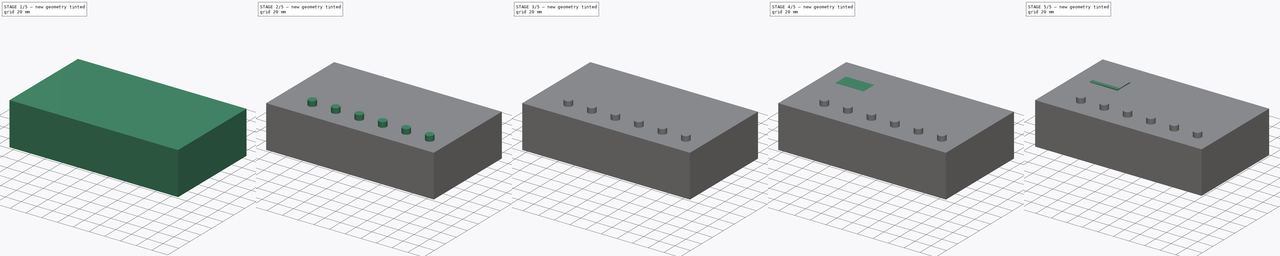
[diagram: build sequence overview — one tinted view per stage of 5, left to right]
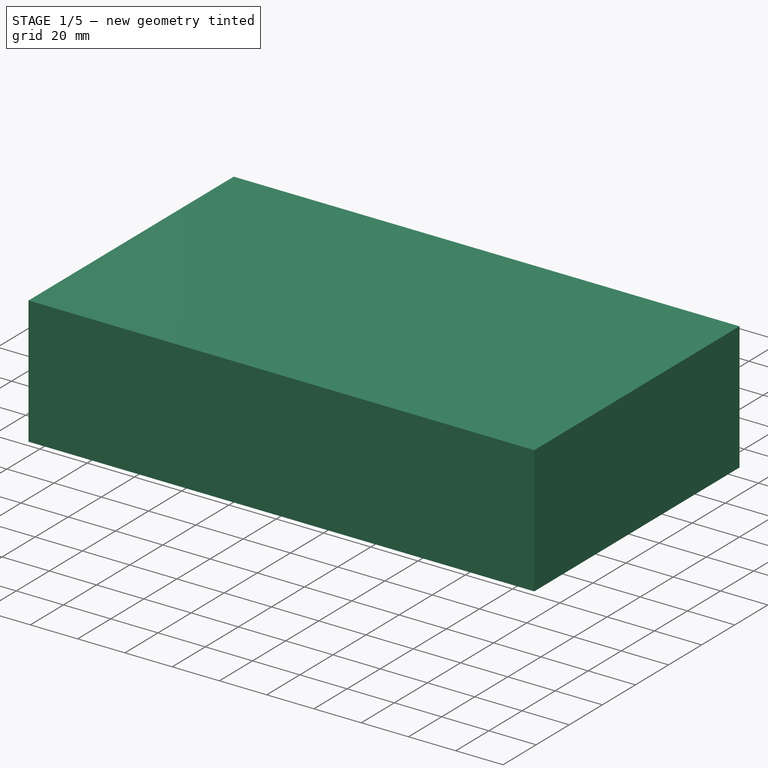
[diagram: stage 1 of 5 — iso view after this stage's code; geometry added in this stage tinted green]
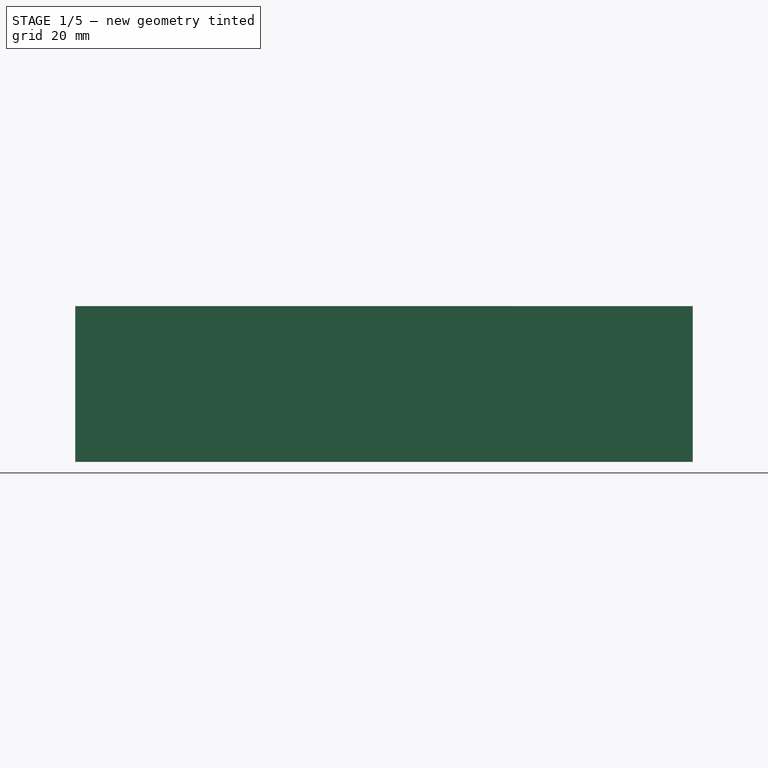
[diagram: stage 1 of 5 — front view after this stage's code; geometry added in this stage tinted green]
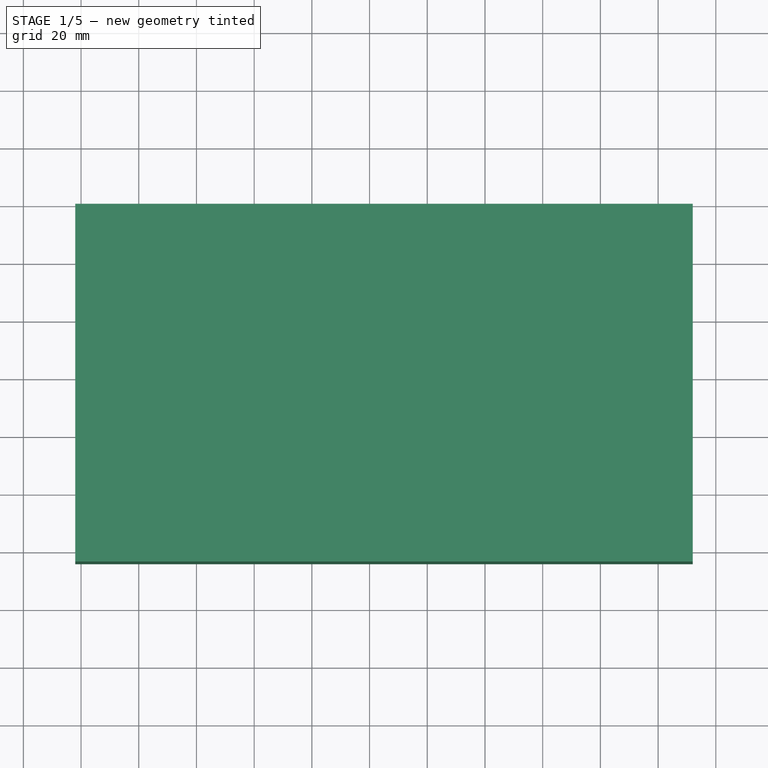
[diagram: stage 1 of 5 — top view after this stage's code; geometry added in this stage tinted green]
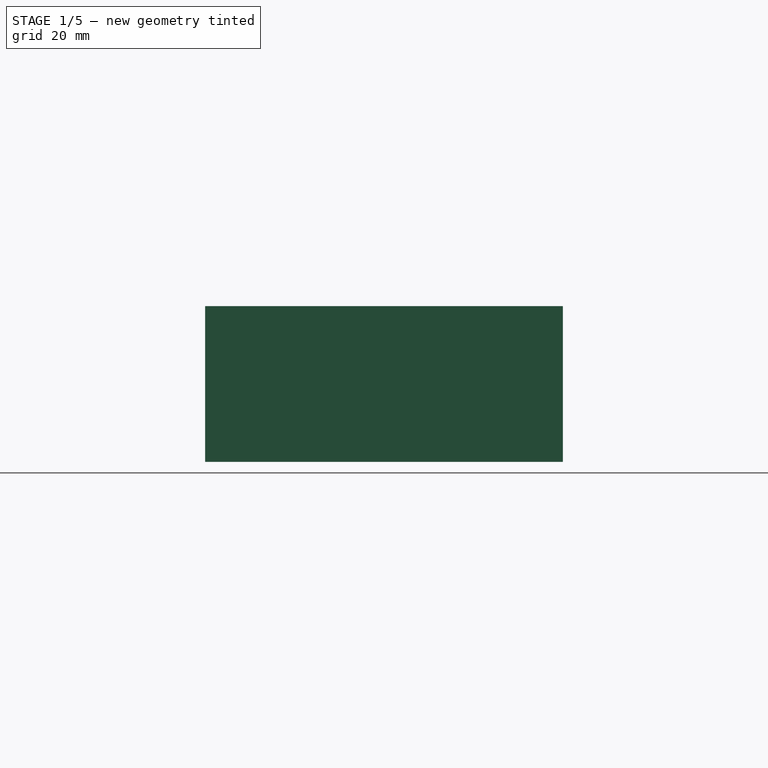
[diagram: stage 1 of 5 — right view after this stage's code; geometry added in this stage tinted green]
FCSTD DOCUMENT  (FreeCAD 0.17R13522 (Git))
Label: 温度控制器
License: All rights reserved
LicenseURL: http://en.wikipedia.org/wiki/All_rights_reserved
objects: Drawing::FeatureViewPart×13, Drawing::FeatureViewPython×13, Part::Feature×12, Part::Box×10, Part::MultiFuse×10, Part::Cylinder×9, Sketcher::SketchObject×4, PartDesign::Pad×4, Part::Cut×3, App::MeasureDistance×2, Part::FeaturePython×1, App::DocumentObjectGroup×1, Drawing::FeaturePage×1
note: 57 computed .brp shape members not serialized (recipe doc carries the construction recipe); baked Part::Feature solids carry a one-line shape summary decoded from their .brp

FEATURE [Part::Box] Box004  label="外壳"
  AttacherType = Attacher::AttachEngine3D
  Height = 50
  Length = 210
  Placement = pos=(-20,-62,0) rot=(0,0,1;0rad)
  Width = 120
FEATURE [App::DocumentObjectGroup] ___  label="group"
  Group = -> [Part__Feature,Part__Feature001,User_Library_QC12864B,Array]
FEATURE [Part::Box] Box008  label="外壳001"
  AttacherType = Attacher::AttachEngine3D
  Height = 54
  Length = 214
  Placement = pos=(-22,-64,-2) rot=(0,0,1;0rad)
  Width = 124
FEATURE [Drawing::FeatureViewPart] View
  Direction = (0,0,1)
  HiddenWidth = 0.15
  LineWidth = 0.35
  Rotation = 0
  ShowHiddenLines = false
  ShowSmoothLines = false
  Source = -> Part__Feature
  Tolerance = 0.05
  ViewResult = <blob: 7566 chars omitted>
  Visible = false
  X = 70
  Y = 80
FEATURE [Drawing::FeatureViewPart] View001
  Direction = (0,0,1)
  HiddenWidth = 0.15
  LineWidth = 0.35
  Rotation = 0
  ShowHiddenLines = false
  ShowSmoothLines = false
  Source = -> Fusion019002001
  Tolerance = 0.05
  ViewResult = <blob: 5782 chars omitted>
  Visible = false
  X = 70
  Y = 80
FEATURE [Drawing::FeatureViewPart] View002
  Direction = (0,0,1)
  HiddenWidth = 0.15
  LineWidth = 0.35
  Rotation = 0
  ShowHiddenLines = false
  ShowSmoothLines = false
  Source = -> Array
  Tolerance = 0.05
  ViewResult = <g id="View002"\n   transform="rotate(0,70,80) translate(70,80) scale(1,1)"\n  >\n<g   fill="none"\n   stroke="rgb(0, 0, 0)"\n   stroke-linecap="butt"\n   stroke-linejoin="miter"\n   stroke-width="0.350000"\n   transform="scale(1,-1)"\n  >\n<circle cx ="20" cy ="-40" r ="7" /><circle cx ="20" cy ="-40" r ="5" /><circle cx ="50" cy ="-40" r ="7" /><circle cx ="50" cy ="-40" r ="5" /><circle cx ="80" cy ="-40" r ="7" /><circle cx ="80" cy ="-40" r ="5" /><circle cx ="110" cy ="-40" r ="7" /><circle cx ="110" cy ="-40" r ="5" /><circle cx ="140" cy ="-40" r ="7" /><circle cx ="140" cy ="-40" r ="5" /><circle cx ="170" cy ="-40" r ="7" /><circle cx ="170" cy ="-40" r ="5" /></g>\n</g>
  Visible = false
  X = 70
  Y = 80
FEATURE [Drawing::FeatureViewPart] View003
  Direction = (0,0,1)
  HiddenWidth = 0.15
  LineWidth = 0.35
  Rotation = 0
  ShowHiddenLines = false
  ShowSmoothLines = false
  Source = -> Fusion019002002
  Tolerance = 0.05
  ViewResult = <g id="View003"\n   transform="rotate(0,70,80) translate(70,80) scale(1,1)"\n  >\n<g   fill="none"\n   stroke="rgb(0, 0, 0)"\n   stroke-linecap="butt"\n   stroke-linejoin="miter"\n   stroke-width="0.350000"\n   transform="scale(1,-1)"\n  >\n<path id= "1" d=" M 107.7 -21 L 152.3 -21 " />\n<path id= "2" d=" M 107.7 -39 L 107.7 -21 " />\n<path id= "3" d=" M 152.3 -21 L 152.3 -26.25 " />\n<path id= "4" d=" M 152.3 -33.75 L 152.3 -39 " />\n<path id= "5" d=" M 152.3 -39 L 107.7 -39 " />\n<path id= "6" d=" M 152 -26.25 L 145 -26.25 " />\n<path id= "7" d=" M 154 -26.25 L 152 -26.25 " />\n<path id= "8" d=" M 145 -26.25 L 145 -33.75 " />\n<path id= "9" d=" M 154 -33.75 L 152 -33.75 " />\n<path id= "10" d=" M 152 -33.75 L 145 -33.75 " />\n<path id= "11" d=" M 124.7 -32.5 L 124.7 -28.5 " />\n<path id= "12" d=" M 127.7 -32.5 L 124.7 -32.5 " />\n<path id= "13" d=" M 127.7 -28.5 L 127.7 -32.5 " />\n<path id= "14" d=" M 124.7 -28.5 L 127.7 -28.5 " />\n<path id= "15" d=" M 135.65 -25.0503 L 130.7 -30 " />\n<path id= "16" d=" M 130.7 -30 L 135.65 -34.9497 " />\n<path id= "17" d=" M 135.65 -34.9497 L 140.599 -30 " />\n<path id= "18" d=" M 140.599 -30 L 135.65 -25.0503 " />\n<path id= "19" d=" M 154 -26.25 L 154 -33.75 " />\n<circle cx ="126.2" cy ="-30.5" r ="1" /></g>\n</g>
  Visible = false
  X = 70
  Y = 80
FEATURE [Drawing::FeatureViewPart] View004
  Direction = (0,0,1)
  HiddenWidth = 0.15
  LineWidth = 0.35
  Rotation = 0
  ShowHiddenLines = false
  ShowSmoothLines = false
  Source = -> Box007
  Tolerance = 0.05
  ViewResult = <g id="View004"\n   transform="rotate(0,70,80) translate(70,80) scale(1,1)"\n  >\n<g   fill="none"\n   stroke="rgb(0, 0, 0)"\n   stroke-linecap="butt"\n   stroke-linejoin="miter"\n   stroke-width="0.350000"\n   transform="scale(1,-1)"\n  >\n<path id= "1" d=" M 110 7 L 110 58 " />\n<path id= "2" d=" M 190 7 L 190 58 " />\n<path id= "3" d=" M 110 7 L 190 7 " />\n<path id= "4" d=" M 110 58 L 190 58 " />\n</g>\n</g>
  Visible = false
  X = 70
  Y = 80
FEATURE [Drawing::FeatureViewPart] View005
  Direction = (0,0,1)
  HiddenWidth = 0.15
  LineWidth = 0.35
  Rotation = 0
  ShowHiddenLines = false
  ShowSmoothLines = false
  Source = -> Cut001
  Tolerance = 0.05
  ViewResult = <g id="View005"\n   transform="rotate(0,70,80) translate(70,80) scale(1,1)"\n  >\n<g   fill="none"\n   stroke="rgb(0, 0, 0)"\n   stroke-linecap="butt"\n   stroke-linejoin="miter"\n   stroke-width="0.350000"\n   transform="scale(1,-1)"\n  >\n<path id= "1" d=" M -22 -64 L -22 60 " />\n<path id= "2" d=" M -22 -64 L 192 -64 " />\n<path id= "3" d=" M -22 60 L 192 60 " />\n<path id= "4" d=" M 192 -64 L 192 60 " />\n</g>\n</g>
  Visible = false
  X = 70
  Y = 80
FEATURE [Drawing::FeatureViewPart] View006
  Direction = (0,0,1)
  HiddenWidth = 0.15
  LineWidth = 0.35
  Rotation = 0
  ShowHiddenLines = false
  ShowSmoothLines = false
  Source = -> Fusion019001
  Tolerance = 0.05
  ViewResult = <g id="View006"\n   transform="rotate(0,70,80) translate(70,80) scale(1,1)"\n  >\n<g   fill="none"\n   stroke="rgb(0, 0, 0)"\n   stroke-linecap="butt"\n   stroke-linejoin="miter"\n   stroke-width="0.350000"\n   transform="scale(1,-1)"\n  >\n<path id= "1" d=" M 57.7 -21 L 102.3 -21 " />\n<path id= "2" d=" M 57.7 -39 L 57.7 -21 " />\n<path id= "3" d=" M 102.3 -21 L 102.3 -26.25 " />\n<path id= "4" d=" M 102.3 -33.75 L 102.3 -39 " />\n<path id= "5" d=" M 102.3 -39 L 57.7 -39 " />\n<path id= "6" d=" M 102 -26.25 L 95 -26.25 " />\n<path id= "7" d=" M 104 -26.25 L 102 -26.25 " />\n<path id= "8" d=" M 95 -26.25 L 95 -33.75 " />\n<path id= "9" d=" M 104 -33.75 L 102 -33.75 " />\n<path id= "10" d=" M 102 -33.75 L 95 -33.75 " />\n<path id= "11" d=" M 74.7 -32.5 L 74.7 -28.5 " />\n<path id= "12" d=" M 77.7 -32.5 L 74.7 -32.5 " />\n<path id= "13" d=" M 77.7 -28.5 L 77.7 -32.5 " />\n<path id= "14" d=" M 74.7 -28.5 L 77.7 -28.5 " />\n<path id= "15" d=" M 85.6497 -25.0503 L 80.7 -30 " />\n<path id= "16" d=" M 80.7 -30 L 85.6497 -34.9497 " />\n<path id= "17" d=" M 85.6497 -34.9497 L 90.5995 -30 " />\n<path id= "18" d=" M 90.5995 -30 L 85.6497 -25.0503 " />\n<path id= "19" d=" M 104 -26.25 L 104 -33.75 " />\n<circle cx ="76.2" cy ="-30.5" r ="1" /></g>\n</g>
  Visible = false
  X = 70
  Y = 80
FEATURE [Drawing::FeatureViewPart] View007
  Direction = (0,0,1)
  HiddenWidth = 0.15
  LineWidth = 0.35
  Rotation = 0
  ShowHiddenLines = false
  ShowSmoothLines = false
  Source = -> Box005
  Tolerance = 0.05
  ViewResult = <g id="View007"\n   transform="rotate(0,70,80) translate(70,80) scale(1,1)"\n  >\n<g   fill="none"\n   stroke="rgb(0, 0, 0)"\n   stroke-linecap="butt"\n   stroke-linejoin="miter"\n   stroke-width="0.350000"\n   transform="scale(1,-1)"\n  >\n<path id= "1" d=" M 20 0 L 20 26 " />\n<path id= "2" d=" M 70 0 L 70 26 " />\n<path id= "3" d=" M 20 0 L 70 0 " />\n<path id= "4" d=" M 20 26 L 70 26 " />\n</g>\n</g>
  Visible = false
  X = 70
  Y = 80
FEATURE [Drawing::FeatureViewPart] View008
  Direction = (0,0,1)
  HiddenWidth = 0.15
  LineWidth = 0.35
  Rotation = 0
  ShowHiddenLines = false
  ShowSmoothLines = false
  Source = -> Part__Feature001
  Tolerance = 0.05
  ViewResult = <blob: 7342 chars omitted>
  Visible = false
  X = 70
  Y = 80
FEATURE [Drawing::FeatureViewPart] View009
  Direction = (0,0,1)
  HiddenWidth = 0.15
  LineWidth = 0.35
  Rotation = 0
  ShowHiddenLines = false
  ShowSmoothLines = false
  Source = -> Box006
  Tolerance = 0.05
  ViewResult = <g id="View009"\n   transform="rotate(0,70,80) translate(70,80) scale(1,1)"\n  >\n<g   fill="none"\n   stroke="rgb(0, 0, 0)"\n   stroke-linecap="butt"\n   stroke-linejoin="miter"\n   stroke-width="0.350000"\n   transform="scale(1,-1)"\n  >\n<path id= "1" d=" M 20 29 L 20 55 " />\n<path id= "2" d=" M 70 29 L 70 55 " />\n<path id= "3" d=" M 20 29 L 70 29 " />\n<path id= "4" d=" M 20 55 L 70 55 " />\n</g>\n</g>
  Visible = false
  X = 70
  Y = 80
FEATURE [Drawing::FeatureViewPart] View010
  Direction = (0,0,1)
  HiddenWidth = 0.15
  LineWidth = 0.35
  Rotation = 0
  ShowHiddenLines = false
  ShowSmoothLines = false
  Source = -> User_Library_QC12864B
  Tolerance = 0.05
  ViewResult = <blob: 168378 chars omitted>
  Visible = false
  X = 70
  Y = 80
FEATURE [Drawing::FeatureViewPython] dim001  # drawing view (typed FeaturePython)
  Rotation = 0
  ViewResult = <g> \n  <line x1="46.000000" y1="144.000000" x2="20.939112" y2="144.000000" style="stroke:rgb(0,0,255);stroke-width:0.50" />\n<line x1="46.000000" y1="20.000000" x2="20.939112" y2="20.000000" style="stroke:rgb(0,0,255);stroke-width:0.50" />\n<line x1="21.939112" y1="144.000000" x2="21.939112" y2="20.000000" style="stroke:rgb(0,0,255);stroke-width:0.50" /> \n  <polygon points="21.939112,20.000000 20.939112,23.000000 21.939112,24.000000 22.939112,23.000000" style="fill:rgb(0,0,255);stroke:rgb(0,0,255);stroke-width:0" /><polygon points="21.939112,144.000000 22.939112,141.000000 21.939112,140.000000 20.939112,141.000000" style="fill:rgb(0,0,255);stroke:rgb(0,0,255);stroke-width:0" /> \n  <text x="19.939112" y="82.000000" font-family="inherit" font-size="3.6" fill="rgb(0,0,255)" text-anchor="middle" transform="rotate(-90.000000 19.939112,82.000000)" >124</text> </g>
  Visible = false
  X = 0
  Y = 0
  arrowL1 = 3
  arrowL2 = 1
  arrowW = 2
  arrow_scheme = 0
  autoPlaceOffset = 2
  autoPlaceText = true
  click1_x = 21.9391
  click1_y = 97.0196
  click2_x = 21.9391
  click2_y = 97.0196
  comma_decimal_place = false
  dimension_line_overshoot = 1
  gap_datum_points = 2
  halfDimension_linear = false
  lineColor = rgb(0,0,255)
  strokeWidth = 0.5
  textFormat_linear = %(value)3.3f
  textRenderer_color = rgb(0,0,255)
  textRenderer_family = inherit
  textRenderer_size = 3.6
  unit_custom_scale = 1
  unit_scheme = 0
FEATURE [Drawing::FeatureViewPython] dim002  # drawing view (typed FeaturePython)
  Rotation = 0
  ViewResult = <g> \n  <line x1="48.000000" y1="146.000000" x2="48.000000" y2="156.992574" style="stroke:rgb(0,0,255);stroke-width:0.50" />\n<line x1="262.000000" y1="146.000000" x2="262.000000" y2="156.992574" style="stroke:rgb(0,0,255);stroke-width:0.50" />\n<line x1="48.000000" y1="155.992574" x2="262.000000" y2="155.992574" style="stroke:rgb(0,0,255);stroke-width:0.50" /> \n  <polygon points="262.000000,155.992574 259.000000,154.992574 258.000000,155.992574 259.000000,156.992574" style="fill:rgb(0,0,255);stroke:rgb(0,0,255);stroke-width:0" /><polygon points="48.000000,155.992574 51.000000,156.992574 52.000000,155.992574 51.000000,154.992574" style="fill:rgb(0,0,255);stroke:rgb(0,0,255);stroke-width:0" /> \n  <text x="155.000000" y="153.992574" font-family="inherit" font-size="3.6" fill="rgb(0,0,255)" text-anchor="middle" transform="rotate(0.000000 155.000000,153.992574)" >214</text> </g>
  Visible = false
  X = 0
  Y = 0
  arrowL1 = 3
  arrowL2 = 1
  arrowW = 2
  arrow_scheme = 0
  autoPlaceOffset = 2
  autoPlaceText = true
  click1_x = 59.4151
  click1_y = 155.993
  click2_x = 59.4151
  click2_y = 155.993
  comma_decimal_place = false
  dimension_line_overshoot = 1
  gap_datum_points = 2
  halfDimension_linear = false
  lineColor = rgb(0,0,255)
  strokeWidth = 0.5
  textFormat_linear = %(value)3.3f
  textRenderer_color = rgb(0,0,255)
  textRenderer_family = inherit
  textRenderer_size = 3.6
  unit_custom_scale = 1
  unit_scheme = 0
FEATURE [Drawing::FeatureViewPython] dim003  # drawing view (typed FeaturePython)
  Rotation = 0
  ViewResult = <g> \n  <line x1="52.000000" y1="131.700000" x2="73.321807" y2="131.700000" style="stroke:rgb(0,0,255);stroke-width:0.50" />\n<line x1="52.000000" y1="106.300000" x2="73.321807" y2="106.300000" style="stroke:rgb(0,0,255);stroke-width:0.50" />\n<line x1="72.321807" y1="131.700000" x2="72.321807" y2="106.300000" style="stroke:rgb(0,0,255);stroke-width:0.50" /> \n  <polygon points="72.321807,106.300000 71.321807,109.300000 72.321807,110.300000 73.321807,109.300000" style="fill:rgb(0,0,255);stroke:rgb(0,0,255);stroke-width:0" /><polygon points="72.321807,131.700000 73.321807,128.700000 72.321807,127.700000 71.321807,128.700000" style="fill:rgb(0,0,255);stroke:rgb(0,0,255);stroke-width:0" /> \n  <text x="70.321807" y="119.000000" font-family="inherit" font-size="3.6" fill="rgb(0,0,255)" text-anchor="middle" transform="rotate(-90.000000 70.321807,119.000000)" >25.4</text> </g>
  Visible = false
  X = 0
  Y = 0
  arrowL1 = 3
  arrowL2 = 1
  arrowW = 2
  arrow_scheme = 0
  autoPlaceOffset = 2
  autoPlaceText = true
  click1_x = 72.3218
  click1_y = 120.833
  click2_x = 72.3218
  click2_y = 120.833
  comma_decimal_place = false
  dimension_line_overshoot = 1
  gap_datum_points = 2
  halfDimension_linear = false
  lineColor = rgb(0,0,255)
  strokeWidth = 0.5
  textFormat_linear = %(value)3.3f
  textRenderer_color = rgb(0,0,255)
  textRenderer_family = inherit
  textRenderer_size = 3.6
  unit_custom_scale = 1
  unit_scheme = 0
FEATURE [Drawing::FeatureViewPython] dim004  # drawing view (typed FeaturePython)
  Rotation = 0
  ViewResult = <g> \n  <line x1="83.020500" y1="30.000000" x2="80.668009" y2="30.000000" style="stroke:rgb(0,0,255);stroke-width:0.50" />\n<line x1="83.020500" y1="100.000000" x2="80.668009" y2="100.000000" style="stroke:rgb(0,0,255);stroke-width:0.50" />\n<line x1="81.668009" y1="30.000000" x2="81.668009" y2="100.000000" style="stroke:rgb(0,0,255);stroke-width:0.50" /> \n  <polygon points="81.668009,100.000000 82.668009,97.000000 81.668009,96.000000 80.668009,97.000000" style="fill:rgb(0,0,255);stroke:rgb(0,0,255);stroke-width:0" /><polygon points="81.668009,30.000000 80.668009,33.000000 81.668009,34.000000 82.668009,33.000000" style="fill:rgb(0,0,255);stroke:rgb(0,0,255);stroke-width:0" /> \n  <text x="79.668009" y="65.000000" font-family="inherit" font-size="3.6" fill="rgb(0,0,255)" text-anchor="middle" transform="rotate(-90.000000 79.668009,65.000000)" >70</text> </g>
  Visible = false
  X = 0
  Y = 0
  arrowL1 = 3
  arrowL2 = 1
  arrowW = 2
  arrow_scheme = 0
  autoPlaceOffset = 2
  autoPlaceText = true
  click1_x = 81.668
  click1_y = 63.8657
  click2_x = 81.668
  click2_y = 63.8657
  comma_decimal_place = false
  dimension_line_overshoot = 1
  gap_datum_points = 2
  halfDimension_linear = false
  lineColor = rgb(0,0,255)
  strokeWidth = 0.5
  textFormat_linear = %(value)3.3f
  textRenderer_color = rgb(0,0,255)
  textRenderer_family = inherit
  textRenderer_size = 3.6
  unit_custom_scale = 1
  unit_scheme = 0
FEATURE [Drawing::FeatureViewPython] dim005  # drawing view (typed FeaturePython)
  Rotation = 0
  ViewResult = <g> \n  <line x1="178.021000" y1="28.000000" x2="178.021000" y2="13.241833" style="stroke:rgb(0,0,255);stroke-width:0.50" />\n<line x1="85.020500" y1="28.000000" x2="85.020500" y2="13.241833" style="stroke:rgb(0,0,255);stroke-width:0.50" />\n<line x1="178.021000" y1="14.241833" x2="85.020500" y2="14.241833" style="stroke:rgb(0,0,255);stroke-width:0.50" /> \n  <polygon points="85.020500,14.241833 88.020500,15.241833 89.020500,14.241833 88.020500,13.241833" style="fill:rgb(0,0,255);stroke:rgb(0,0,255);stroke-width:0" /><polygon points="178.021000,14.241833 175.021000,13.241833 174.021000,14.241833 175.021000,15.241833" style="fill:rgb(0,0,255);stroke:rgb(0,0,255);stroke-width:0" /> \n  <text x="131.520750" y="12.241833" font-family="inherit" font-size="3.6" fill="rgb(0,0,255)" text-anchor="middle" transform="rotate(0.000000 131.520750,12.241833)" >93.001</text> </g>
  Visible = false
  X = 0
  Y = 0
  arrowL1 = 3
  arrowL2 = 1
  arrowW = 2
  arrow_scheme = 0
  autoPlaceOffset = 2
  autoPlaceText = true
  click1_x = 105.924
  click1_y = 14.2418
  click2_x = 105.924
  click2_y = 14.2418
  comma_decimal_place = false
  dimension_line_overshoot = 1
  gap_datum_points = 2
  halfDimension_linear = false
  lineColor = rgb(0,0,255)
  strokeWidth = 0.5
  textFormat_linear = %(value)3.3f
  textRenderer_color = rgb(0,0,255)
  textRenderer_family = inherit
  textRenderer_size = 3.6
  unit_custom_scale = 1
  unit_scheme = 0
FEATURE [Drawing::FeatureViewPython] dim006  # drawing view (typed FeaturePython)
  Rotation = 0
  ViewResult = <g> \n  <line x1="262.000000" y1="73.000000" x2="272.707464" y2="73.000000" style="stroke:rgb(0,0,255);stroke-width:0.50" />\n<line x1="262.000000" y1="22.000000" x2="272.707464" y2="22.000000" style="stroke:rgb(0,0,255);stroke-width:0.50" />\n<line x1="271.707464" y1="73.000000" x2="271.707464" y2="22.000000" style="stroke:rgb(0,0,255);stroke-width:0.50" /> \n  <polygon points="271.707464,22.000000 270.707464,25.000000 271.707464,26.000000 272.707464,25.000000" style="fill:rgb(0,0,255);stroke:rgb(0,0,255);stroke-width:0" /><polygon points="271.707464,73.000000 272.707464,70.000000 271.707464,69.000000 270.707464,70.000000" style="fill:rgb(0,0,255);stroke:rgb(0,0,255);stroke-width:0" /> \n  <text x="269.707464" y="47.500000" font-family="inherit" font-size="3.6" fill="rgb(0,0,255)" text-anchor="middle" transform="rotate(-90.000000 269.707464,47.500000)" >51</text> </g>
  Visible = false
  X = 0
  Y = 0
  arrowL1 = 3
  arrowL2 = 1
  arrowW = 2
  arrow_scheme = 0
  autoPlaceOffset = 2
  autoPlaceText = true
  click1_x = 271.707
  click1_y = 50.514
  click2_x = 271.707
  click2_y = 50.514
  comma_decimal_place = false
  dimension_line_overshoot = 1
  gap_datum_points = 2
  halfDimension_linear = false
  lineColor = rgb(0,0,255)
  strokeWidth = 0.5
  textFormat_linear = %(value)3.3f
  textRenderer_color = rgb(0,0,255)
  textRenderer_family = inherit
  textRenderer_size = 3.6
  unit_custom_scale = 1
  unit_scheme = 0
FEATURE [Drawing::FeatureViewPython] dim007  # drawing view (typed FeaturePython)
  Rotation = 0
  ViewResult = <g> \n  <line x1="180.000000" y1="20.000000" x2="180.000000" y2="13.241833" style="stroke:rgb(0,0,255);stroke-width:0.50" />\n<line x1="260.000000" y1="20.000000" x2="260.000000" y2="13.241833" style="stroke:rgb(0,0,255);stroke-width:0.50" />\n<line x1="180.000000" y1="14.241833" x2="260.000000" y2="14.241833" style="stroke:rgb(0,0,255);stroke-width:0.50" /> \n  <polygon points="260.000000,14.241833 257.000000,13.241833 256.000000,14.241833 257.000000,15.241833" style="fill:rgb(0,0,255);stroke:rgb(0,0,255);stroke-width:0" /><polygon points="180.000000,14.241833 183.000000,15.241833 184.000000,14.241833 183.000000,13.241833" style="fill:rgb(0,0,255);stroke:rgb(0,0,255);stroke-width:0" /> \n  <text x="220.000000" y="12.241833" font-family="inherit" font-size="3.6" fill="rgb(0,0,255)" text-anchor="middle" transform="rotate(0.000000 220.000000,12.241833)" >80</text> </g>
  Visible = false
  X = 0
  Y = 0
  arrowL1 = 3
  arrowL2 = 1
  arrowW = 2
  arrow_scheme = 0
  autoPlaceOffset = 2
  autoPlaceText = true
  click1_x = 225.867
  click1_y = 14.2418
  click2_x = 225.867
  click2_y = 14.2418
  comma_decimal_place = false
  dimension_line_overshoot = 1
  gap_datum_points = 2
  halfDimension_linear = false
  lineColor = rgb(0,0,255)
  strokeWidth = 0.5
  textFormat_linear = %(value)3.3f
  textRenderer_color = rgb(0,0,255)
  textRenderer_family = inherit
  textRenderer_size = 3.6
  unit_custom_scale = 1
  unit_scheme = 0
FEATURE [Drawing::FeatureViewPython] dim008  # drawing view (typed FeaturePython)
  Rotation = 0
  ViewResult = <g> \n  <line x1="90.000000" y1="127.000000" x2="90.000000" y2="131.492207" style="stroke:rgb(0,0,255);stroke-width:0.50" />\n<line x1="85.000000" y1="122.000000" x2="85.000000" y2="131.492207" style="stroke:rgb(0,0,255);stroke-width:0.50" />\n<line x1="90.000000" y1="130.492207" x2="85.000000" y2="130.492207" style="stroke:rgb(0,0,255);stroke-width:0.50" /> \n  <polygon points="85.000000,130.492207 82.000000,129.492207 81.000000,130.492207 82.000000,131.492207" style="fill:rgb(0,0,255);stroke:rgb(0,0,255);stroke-width:0" /><polygon points="90.000000,130.492207 93.000000,131.492207 94.000000,130.492207 93.000000,129.492207" style="fill:rgb(0,0,255);stroke:rgb(0,0,255);stroke-width:0" /> \n  <text x="87.500000" y="128.492207" font-family="inherit" font-size="3.6" fill="rgb(0,0,255)" text-anchor="middle" transform="rotate(0.000000 87.500000,128.492207)" >5</text> </g>
  Visible = false
  X = 0
  Y = 0
  arrowL1 = 3
  arrowL2 = 1
  arrowW = 2
  arrow_scheme = 0
  autoPlaceOffset = 2
  autoPlaceText = true
  click1_x = 87.4171
  click1_y = 130.492
  click2_x = 87.4171
  click2_y = 130.492
  comma_decimal_place = false
  dimension_line_overshoot = 1
  gap_datum_points = 2
  halfDimension_linear = false
  lineColor = rgb(0,0,255)
  strokeWidth = 0.5
  textFormat_linear = %(value)3.3f
  textRenderer_color = rgb(0,0,255)
  textRenderer_family = inherit
  textRenderer_size = 3.6
  unit_custom_scale = 1
  unit_scheme = 0
FEATURE [Drawing::FeatureViewPython] dim009  # drawing view (typed FeaturePython)
  Rotation = 0
  ViewResult = <g> \n  <line x1="85.000000" y1="118.000000" x2="85.000000" y2="109.519670" style="stroke:rgb(0,0,255);stroke-width:0.50" />\n<line x1="95.000000" y1="118.000000" x2="95.000000" y2="109.519670" style="stroke:rgb(0,0,255);stroke-width:0.50" />\n<line x1="85.000000" y1="110.519670" x2="95.000000" y2="110.519670" style="stroke:rgb(0,0,255);stroke-width:0.50" /> \n  <polygon points="95.000000,110.519670 98.000000,111.519670 99.000000,110.519670 98.000000,109.519670" style="fill:rgb(0,0,255);stroke:rgb(0,0,255);stroke-width:0" /><polygon points="85.000000,110.519670 82.000000,109.519670 81.000000,110.519670 82.000000,111.519670" style="fill:rgb(0,0,255);stroke:rgb(0,0,255);stroke-width:0" /> \n  <text x="90.000000" y="108.519670" font-family="inherit" font-size="3.6" fill="rgb(0,0,255)" text-anchor="middle" transform="rotate(0.000000 90.000000,108.519670)" >10</text> </g>
  Visible = false
  X = 0
  Y = 0
  arrowL1 = 3
  arrowL2 = 1
  arrowW = 2
  arrow_scheme = 0
  autoPlaceOffset = 2
  autoPlaceText = true
  click1_x = 92.4102
  click1_y = 110.52
  click2_x = 92.4102
  click2_y = 110.52
  comma_decimal_place = false
  dimension_line_overshoot = 1
  gap_datum_points = 2
  halfDimension_linear = false
  lineColor = rgb(0,0,255)
  strokeWidth = 0.5
  textFormat_linear = %(value)3.3f
  textRenderer_color = rgb(0,0,255)
  textRenderer_family = inherit
  textRenderer_size = 3.6
  unit_custom_scale = 1
  unit_scheme = 0
FEATURE [Drawing::FeatureViewPython] dim010  # drawing view (typed FeaturePython)
  Rotation = 0
  ViewResult = <g> \n  <line x1="48.000000" y1="34.900000" x2="32.856654" y2="34.900000" style="stroke:rgb(0,0,255);stroke-width:0.50" />\n<line x1="48.000000" y1="87.000000" x2="32.856654" y2="87.000000" style="stroke:rgb(0,0,255);stroke-width:0.50" />\n<line x1="33.856654" y1="34.900000" x2="33.856654" y2="87.000000" style="stroke:rgb(0,0,255);stroke-width:0.50" /> \n  <polygon points="33.856654,87.000000 34.856654,84.000000 33.856654,83.000000 32.856654,84.000000" style="fill:rgb(0,0,255);stroke:rgb(0,0,255);stroke-width:0" /><polygon points="33.856654,34.900000 32.856654,37.900000 33.856654,38.900000 34.856654,37.900000" style="fill:rgb(0,0,255);stroke:rgb(0,0,255);stroke-width:0" /> \n  <text x="31.856654" y="60.950000" font-family="inherit" font-size="3.6" fill="rgb(0,0,255)" text-anchor="middle" transform="rotate(-90.000000 31.856654,60.950000)" >52.1</text> </g>
  Visible = false
  X = 0
  Y = 0
  arrowL1 = 3
  arrowL2 = 1
  arrowW = 2
  arrow_scheme = 0
  autoPlaceOffset = 2
  autoPlaceText = true
  click1_x = 33.8567
  click1_y = 72.7918
  click2_x = 33.8567
  click2_y = 72.7918
  comma_decimal_place = false
  dimension_line_overshoot = 1
  gap_datum_points = 2
  halfDimension_linear = false
  lineColor = rgb(0,0,255)
  strokeWidth = 0.5
  textFormat_linear = %(value)3.3f
  textRenderer_color = rgb(0,0,255)
  textRenderer_family = inherit
  textRenderer_size = 3.6
  unit_custom_scale = 1
  unit_scheme = 0
FEATURE [Drawing::FeatureViewPython] dim011  # drawing view (typed FeaturePython)
  Rotation = 0
  ViewResult = <g> \n  <line x1="142.000000" y1="80.000000" x2="152.379870" y2="80.000000" style="stroke:rgb(0,0,255);stroke-width:0.50" />\n<line x1="142.000000" y1="54.000000" x2="152.379870" y2="54.000000" style="stroke:rgb(0,0,255);stroke-width:0.50" />\n<line x1="151.379870" y1="80.000000" x2="151.379870" y2="54.000000" style="stroke:rgb(0,0,255);stroke-width:0.50" /> \n  <polygon points="151.379870,54.000000 150.379870,57.000000 151.379870,58.000000 152.379870,57.000000" style="fill:rgb(0,0,255);stroke:rgb(0,0,255);stroke-width:0" /><polygon points="151.379870,80.000000 152.379870,77.000000 151.379870,76.000000 150.379870,77.000000" style="fill:rgb(0,0,255);stroke:rgb(0,0,255);stroke-width:0" /> \n  <text x="149.379870" y="67.000000" font-family="inherit" font-size="3.6" fill="rgb(0,0,255)" text-anchor="middle" transform="rotate(-90.000000 149.379870,67.000000)" >26</text> </g>
  Visible = false
  X = 0
  Y = 0
  arrowL1 = 3
  arrowL2 = 1
  arrowW = 2
  arrow_scheme = 0
  autoPlaceOffset = 2
  autoPlaceText = true
  click1_x = 151.38
  click1_y = 68.255
  click2_x = 151.38
  click2_y = 68.255
  comma_decimal_place = false
  dimension_line_overshoot = 1
  gap_datum_points = 2
  halfDimension_linear = false
  lineColor = rgb(0,0,255)
  strokeWidth = 0.5
  textFormat_linear = %(value)3.3f
  textRenderer_color = rgb(0,0,255)
  textRenderer_family = inherit
  textRenderer_size = 3.6
  unit_custom_scale = 1
  unit_scheme = 0
FEATURE [Drawing::FeatureViewPython] dim012  # drawing view (typed FeaturePython)
  Rotation = 0
  ViewResult = <g> \n  <line x1="90.000000" y1="56.000000" x2="90.000000" y2="63.648352" style="stroke:rgb(0,0,255);stroke-width:0.50" />\n<line x1="140.000000" y1="56.000000" x2="140.000000" y2="63.648352" style="stroke:rgb(0,0,255);stroke-width:0.50" />\n<line x1="90.000000" y1="62.648352" x2="140.000000" y2="62.648352" style="stroke:rgb(0,0,255);stroke-width:0.50" /> \n  <polygon points="140.000000,62.648352 137.000000,61.648352 136.000000,62.648352 137.000000,63.648352" style="fill:rgb(0,0,255);stroke:rgb(0,0,255);stroke-width:0" /><polygon points="90.000000,62.648352 93.000000,63.648352 94.000000,62.648352 93.000000,61.648352" style="fill:rgb(0,0,255);stroke:rgb(0,0,255);stroke-width:0" /> \n  <text x="115.000000" y="60.648352" font-family="inherit" font-size="3.6" fill="rgb(0,0,255)" text-anchor="middle" transform="rotate(0.000000 115.000000,60.648352)" >50</text> </g>
  Visible = false
  X = 0
  Y = 0
  arrowL1 = 3
  arrowL2 = 1
  arrowW = 2
  arrow_scheme = 0
  autoPlaceOffset = 2
  autoPlaceText = true
  click1_x = 120.665
  click1_y = 62.6484
  click2_x = 120.665
  click2_y = 62.6484
  comma_decimal_place = false
  dimension_line_overshoot = 1
  gap_datum_points = 2
  halfDimension_linear = false
  lineColor = rgb(0,0,255)
  strokeWidth = 0.5
  textFormat_linear = %(value)3.3f
  textRenderer_color = rgb(0,0,255)
  textRenderer_family = inherit
  textRenderer_size = 3.6
  unit_custom_scale = 1
  unit_scheme = 0
FEATURE [Drawing::FeatureViewPython] dim013  # drawing view (typed FeaturePython)
  Rotation = 0
  ViewResult = <g> \n  <line x1="212.225000" y1="86.156460" x2="231.145807" y2="86.156460" style="stroke:rgb(0,0,255);stroke-width:0.50" />\n<line x1="212.225000" y1="93.389400" x2="231.145807" y2="93.389400" style="stroke:rgb(0,0,255);stroke-width:0.50" />\n<line x1="230.145807" y1="86.156460" x2="230.145807" y2="93.389400" style="stroke:rgb(0,0,255);stroke-width:0.50" /> \n  <polygon points="230.145807,93.389400 229.145807,96.389400 230.145807,97.389400 231.145807,96.389400" style="fill:rgb(0,0,255);stroke:rgb(0,0,255);stroke-width:0" /><polygon points="230.145807,86.156460 231.145807,83.156460 230.145807,82.156460 229.145807,83.156460" style="fill:rgb(0,0,255);stroke:rgb(0,0,255);stroke-width:0" /> \n  <text x="228.145807" y="89.772930" font-family="inherit" font-size="3.6" fill="rgb(0,0,255)" text-anchor="middle" transform="rotate(-90.000000 228.145807,89.772930)" >7.233</text> </g>
  Visible = false
  X = 0
  Y = 0
  arrowL1 = 3
  arrowL2 = 1
  arrowW = 2
  arrow_scheme = 0
  autoPlaceOffset = 2
  autoPlaceText = true
  click1_x = 230.146
  click1_y = 88.9635
  click2_x = 230.146
  click2_y = 88.9635
  comma_decimal_place = false
  dimension_line_overshoot = 1
  gap_datum_points = 2
  halfDimension_linear = false
  lineColor = rgb(0,0,255)
  strokeWidth = 0.5
  textFormat_linear = %(value)3.3f
  textRenderer_color = rgb(0,0,255)
  textRenderer_family = inherit
  textRenderer_size = 3.6
  unit_custom_scale = 1
  unit_scheme = 0
FEATURE [Part::Feature] Part__Feature002  label="USB - Type B - Female - Panel Mount"
  Placement = pos=(139,-47.78,-15.1) rot=(-0.57735,-0.57735,-0.57735;4.18879rad)
  shape: bbox 40.2 x 38.57 x 14.95 mm, 559 faces, 7 solids (baked)
FEATURE [App::MeasureDistance] Distance  label="Distance: 37.59 mm"
  Distance = 37.591
  P1 = (193.962,22.9805,50.7172)
  P2 = (231.553,23.1145,50.7172)
FEATURE [App::MeasureDistance] Distance001  label="Distance: 11.80 mm"
  Distance = 11.8001
  P1 = (201.146,28.9798,50.7172)
  P2 = (201.106,17.1798,50.7172)
FEATURE [Drawing::FeatureViewPart] Ortho  label="Ortho_0_0"
  Direction = (1,0,0)
  HiddenWidth = 0.15
  LineWidth = 0.35
  Rotation = -90
  Scale = 1.5
  ShowHiddenLines = false
  ShowSmoothLines = false
  Source = -> Part__Feature002
  Tolerance = 0.05
  ViewResult = <blob: 21313 chars omitted>
  Visible = false
  X = 23.8802
  Y = 110.509
FEATURE [Drawing::FeatureViewPart] Ortho001  label="Ortho_0_-1"
  Direction = (0,0,-1)
  HiddenWidth = 0.15
  LineWidth = 0.35
  Rotation = 90
  Scale = 1.5
  ShowHiddenLines = false
  ShowSmoothLines = false
  Source = -> Part__Feature002
  Tolerance = 0.05
  ViewResult = <blob: 14129 chars omitted>
  Visible = false
  X = 23.8802
  Y = 466.498
FEATURE [Drawing::FeaturePage] Page
  EditableTexts = AUTHOR NAME | DRAWING TITLE | FreeCAD DRAWING | A4 | X / Y | SCALE | PN | DN | DD/MM/YYYY | REV A
  Group = -> [View,View001,View002,View003,View004,View005,View006,View007,View008,View009,View010,dim001,dim002,dim003,dim004,dim005,dim006,dim007,dim008,dim009,dim010,dim011,dim012,dim013,Ortho,Ortho001]
  Template = <path>
FEATURE [Part::Box] Box009  label="立方体"
  AttacherType = Attacher::AttachEngine3D
  Height = 10
  Length = 13
  Placement = pos=(8.5,-6.5,0) rot=(0,0,1;0rad)
  Width = 13
FEATURE [Part::Cylinder] Cylinder007  label="圆柱体004"
  Angle = 360
  AttacherType = Attacher::AttachEngine3D
  Height = 10
  Radius = 1.7
FEATURE [Part::Cylinder] Cylinder008  label="圆柱体005"
  Angle = 360
  AttacherType = Attacher::AttachEngine3D
  Height = 10
  Placement = pos=(30,0,0) rot=(0,0,1;0rad)
  Radius = 1.7
FEATURE [Part::MultiFuse] Fusion019002003  label="usb-type-b"
  Shapes = -> [Cylinder008,Cylinder007,Box009]
FEATURE [Part::Feature] Fusion019002003001  label="usb-type-b001"
  Placement = pos=(185,-50,8) rot=(0.57735,0.57735,0.57735;2.0944rad)
  shape: bbox 10 x 33.4 x 13 mm, 12 faces, 3 solids (baked)
FEATURE [Part::Feature] Cut001001  label="外壳003"
  shape: bbox 214 x 124 x 54 mm, 12 faces (baked)
FEATURE [Part::Cut] Cut001002  label="外壳004"
  Base = -> Cut001001
  Tool = -> Fusion019002003001
note: 1 file-system path scrubbed to <path> (originals preserved in the JSON sidecar)
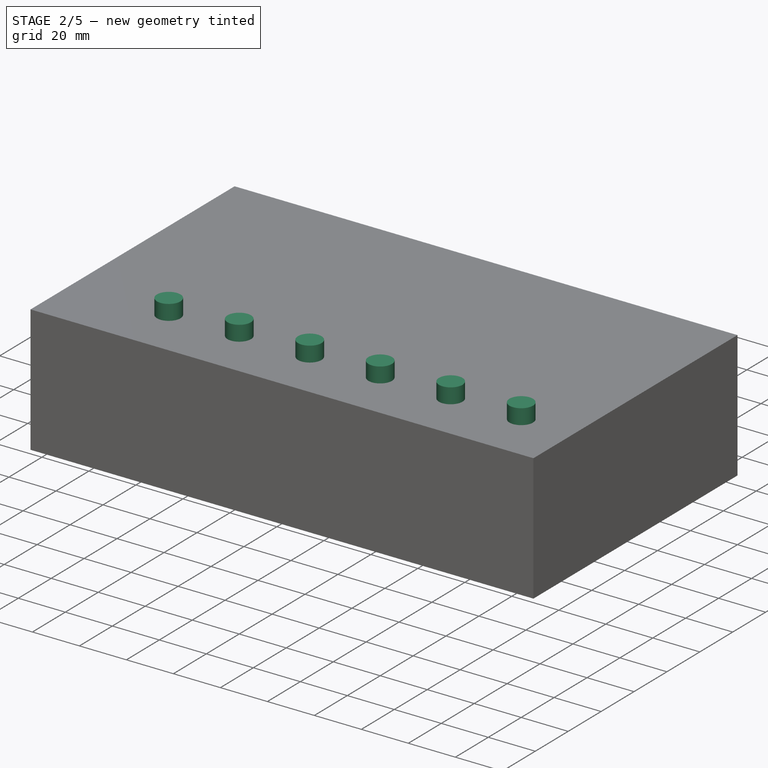
[diagram: stage 2 of 5 — iso view after this stage's code; geometry added in this stage tinted green]
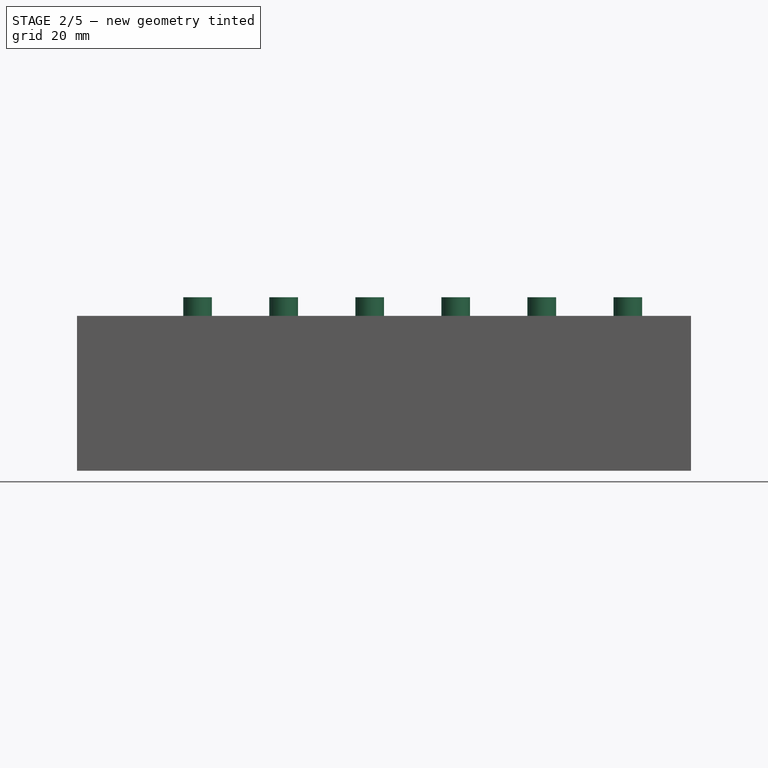
[diagram: stage 2 of 5 — front view after this stage's code; geometry added in this stage tinted green]
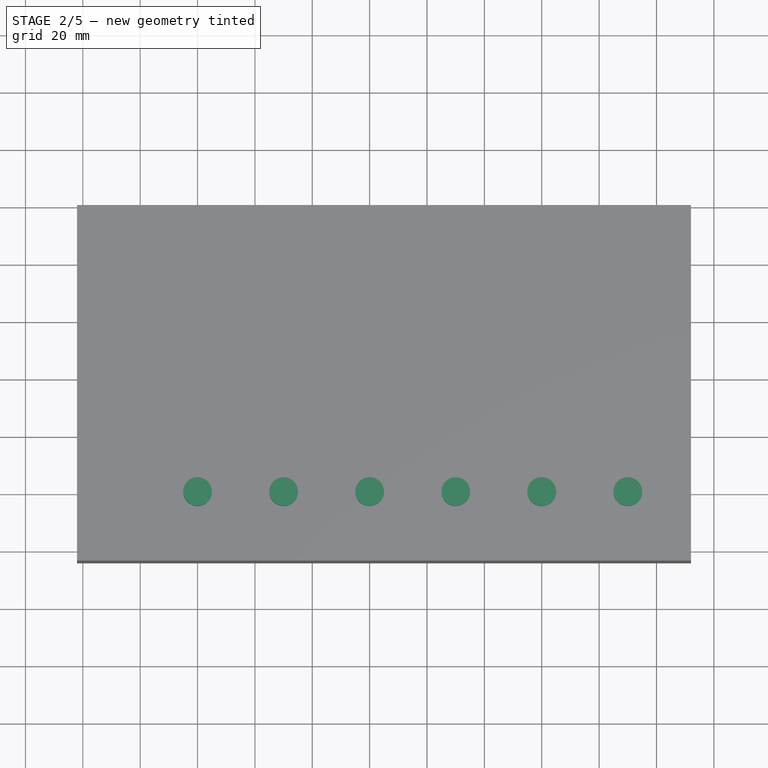
[diagram: stage 2 of 5 — top view after this stage's code; geometry added in this stage tinted green]
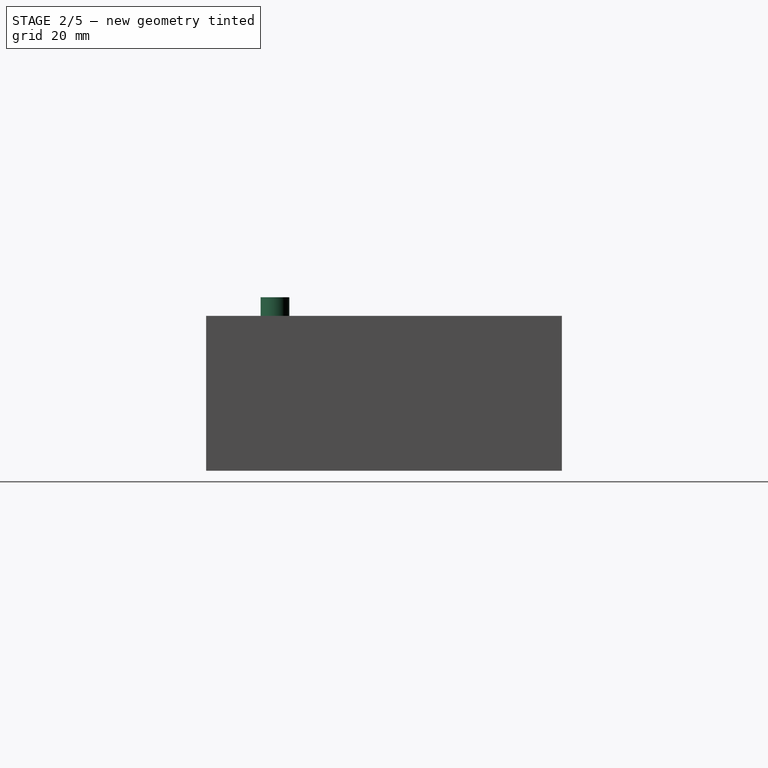
[diagram: stage 2 of 5 — right view after this stage's code; geometry added in this stage tinted green]
FEATURE [Sketcher::SketchObject] Sketch009  label="Btn 1"
  MapMode = 5
  Placement = pos=(0,0,1.5) rot=(0,0,1;0rad)
  sketch-geometry (5):
    g0: LineSegment StartX=-5.3 StartY=1.5 StartZ=0 EndX=-2.3 EndY=1.5 EndZ=0
    g1: LineSegment StartX=-2.3 StartY=1.5 StartZ=0 EndX=-2.3 EndY=-2.5 EndZ=0
    g2: LineSegment StartX=-2.3 StartY=-2.5 StartZ=0 EndX=-5.3 EndY=-2.5 EndZ=0
    g3: LineSegment StartX=-5.3 StartY=-2.5 StartZ=0 EndX=-5.3 EndY=1.5 EndZ=0
    g4: GeomPoint [constr] X=-3.8 Y=-0.5 Z=0
  constraints (14):
    c: Coincident(g0,g1)
    c: Coincident(g1,g2)
    c: Coincident(g2,g3)
    c: Coincident(g3,g0)
    c: Horizontal(g0)
    c: Horizontal(g2)
    c: Vertical(g1)
    c: Vertical(g3)
    c: DistanceX(g0) = 3
    c: DistanceY(g1) = -4
    c: DistanceY(g4,g0) = 2
    c: DistanceX(g4,g0) = 1.5
    c: DistanceX(g-1,g4) = -3.8
    c: DistanceY(g-1,g4) = -0.5
FEATURE [PartDesign::Pad] Pad009
  Length = 2
  Length2 = 100
  Placement = pos=(0,0,1.5) rot=(0,0,1;0rad)
  Profile = -> Sketch009
  Type = 0
FEATURE [Sketcher::SketchObject] Sketch010  label="Btn2"
  MapMode = 5
  Placement = pos=(0,0,3.5) rot=(0,0,1;0rad)
  Support = -> [Pad009]
  sketch-geometry (1):
    g0: Circle CenterX=-3.8 CenterY=-0.5 CenterZ=0 NormalX=0 NormalY=0 NormalZ=1 AngleXU=0 Radius=1
  constraints (3):
    c: DistanceY(g-1,g0) = -0.5
    c: DistanceX(g-1,g0) = -3.8
    c: Radius(g0) = 1
FEATURE [PartDesign::Pad] Pad010
  Length = 0.5
  Length2 = 100
  Placement = pos=(0,0,1.5) rot=(0,0,1;0rad)
  Profile = -> Sketch010
  Type = 0
FEATURE [Sketcher::SketchObject] Sketch011  label="Ci"
  MapMode = 5
  Placement = pos=(0,0,1.5) rot=(0,0,1;0rad)
  sketch-geometry (4):
    g0: LineSegment StartX=5.64975 StartY=4.94975 StartZ=0 EndX=0.7 EndY=0 EndZ=0
    g1: LineSegment StartX=0.7 StartY=0 StartZ=0 EndX=5.64975 EndY=-4.94975 EndZ=0
    g2: LineSegment StartX=5.64975 StartY=-4.94975 StartZ=0 EndX=10.5995 EndY=0 EndZ=0
    g3: LineSegment StartX=10.5995 StartY=0 StartZ=0 EndX=5.64975 EndY=4.94975 EndZ=0
  constraints (11):
    c: Coincident(g0,g1)
    c: Coincident(g1,g2)
    c: Coincident(g2,g3)
    c: Perpendicular(g0,g3) = 4.71239
    c: Perpendicular(g2,g3) = 1.5708
    c: Perpendicular(g1,g2) = 1.5708
    c: Distance(g3) = 7
    c: Distance(g2) = 7
    c: PointOnObject(g0,g-1)
    c: PointOnObject(g2,g-1)
    c: DistanceX(g-1,g0) = 0.7
FEATURE [PartDesign::Pad] Pad011
  Length = 1.2
  Length2 = 100
  Placement = pos=(0,0,1.5) rot=(0,0,1;0rad)
  Profile = -> Sketch011
  Type = 0
FEATURE [Part::Feature] Fusion015  label="航空头座001"
  shape: bbox 14 x 14 x 16 mm, 7 faces (baked)
FEATURE [Part::FeaturePython] Array  label="xls8"  # Draft array (typed FeaturePython)
  Angle = 360
  ArrayType = 0
  Axis = (0,0,1)
  Base = -> Fusion015
  Center = (0,0,0)
  Fuse = false
  IntervalAxis = (0,0,0)
  IntervalX = (30,0,0)
  IntervalY = (0,30,0)
  IntervalZ = (0,0,1)
  NumberPolar = 1
  NumberX = 6
  NumberY = 1
  NumberZ = 1
  Placement = pos=(20,-40,52) rot=(0,0,1;0rad)
FEATURE [Part::Feature] Fusion019001  label="nano001"
  Placement = pos=(80,-30,0) rot=(0,0,1;0rad)
  shape: bbox 46.3 x 18 x 4.5 mm, 30 faces (baked)
FEATURE [Part::Feature] Fusion018001  label="oled.12"
  Placement = pos=(35,10,-14) rot=(0,0,1;0rad)
  shape: bbox 35.6 x 33.5 x 3.4 mm, 21 faces (baked)
FEATURE [Part::Feature] Fusion019002001  label="ec11"
  Placement = pos=(98,10,43) rot=(0,0,1;0rad)
  shape: bbox 14.61 x 12.1 x 27.36 mm, 233 faces, 2 solids (baked)
FEATURE [Part::Feature] Part__Feature  label="AC Power PLUG w. fuse v3"
  Placement = pos=(-20,1,34) rot=(0,0,1;1.5708rad)
  shape: bbox 34.91 x 58.11 x 32.69 mm, 419 faces, 11 solids (baked)
FEATURE [Part::Box] Box005  label="继电器"
  AttacherType = Attacher::AttachEngine3D
  Height = 18
  Length = 50
  Placement = pos=(20,0,0) rot=(0,0,1;0rad)
  Width = 26
FEATURE [Part::Box] Box006  label="继电器001"
  AttacherType = Attacher::AttachEngine3D
  Height = 18
  Length = 50
  Placement = pos=(20,29,0) rot=(0,0,1;0rad)
  Width = 26
FEATURE [Part::Feature] Fusion019002002  label="nano002"
  Placement = pos=(130,-30,0) rot=(0,0,1;0rad)
  shape: bbox 46.3 x 18 x 4.5 mm, 30 faces (baked)
FEATURE [Part::Feature] Part__Feature001  label="Mil Spec 4 Pin Female Connector"
  Placement = pos=(-20,-39,20) rot=(0,-1,0;1.5708rad)
  shape: bbox 30.16 x 30.48 x 30.48 mm, 96 faces (baked)
FEATURE [Part::Feature] User_Library_QC12864B  label="QC12864B"
  Placement = pos=(25,15,42.5) rot=(1,0,0;1.5708rad)
  shape: bbox 93 x 70 x 17.5 mm, 580 faces, 0 solids (baked)
FEATURE [Part::Box] Box007  label="5v3a"
  AttacherType = Attacher::AttachEngine3D
  Height = 28
  Length = 80
  Placement = pos=(110,7,0) rot=(0,0,1;0rad)
  Width = 51
FEATURE [Part::Cut] Cut001  label="外壳002"
  Base = -> Box008
  Tool = -> Box004
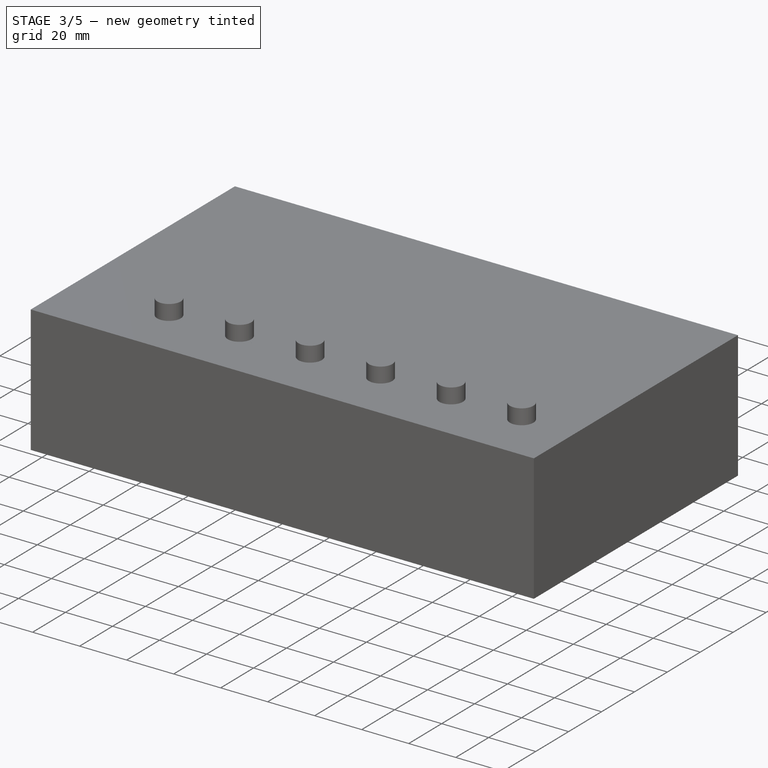
[diagram: stage 3 of 5 — iso view after this stage's code; geometry added in this stage tinted green]
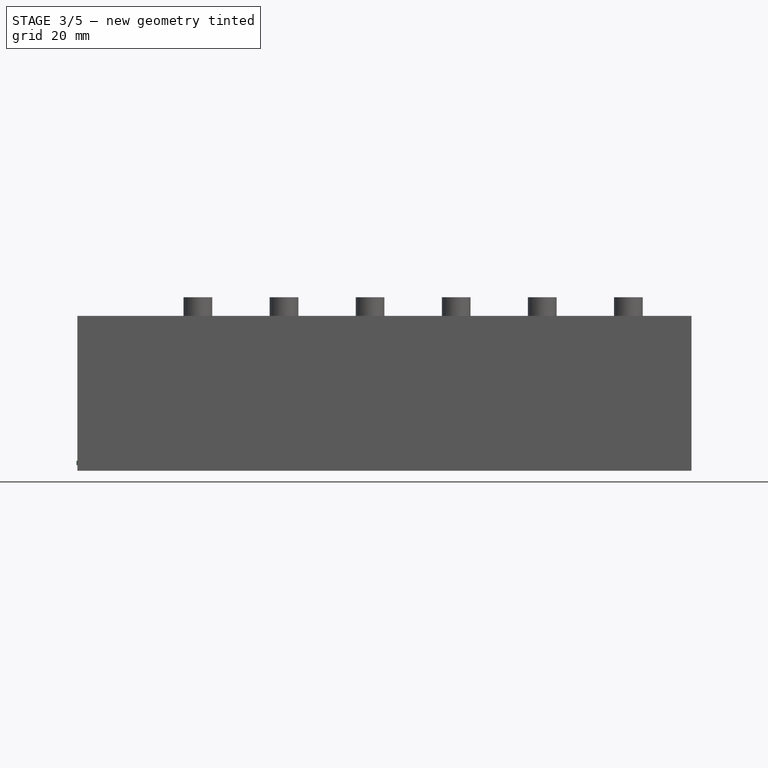
[diagram: stage 3 of 5 — front view after this stage's code; geometry added in this stage tinted green]
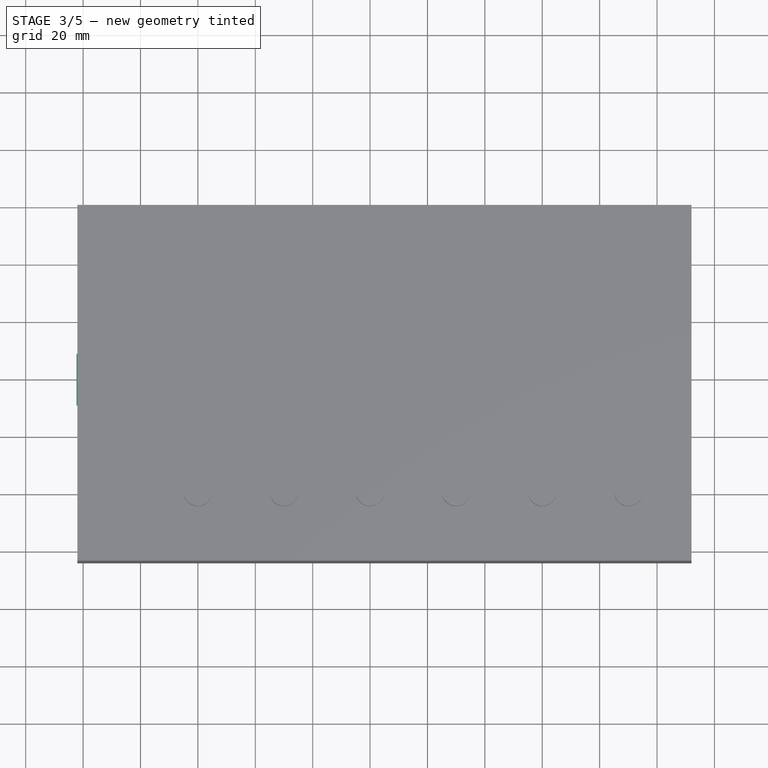
[diagram: stage 3 of 5 — top view after this stage's code; geometry added in this stage tinted green]
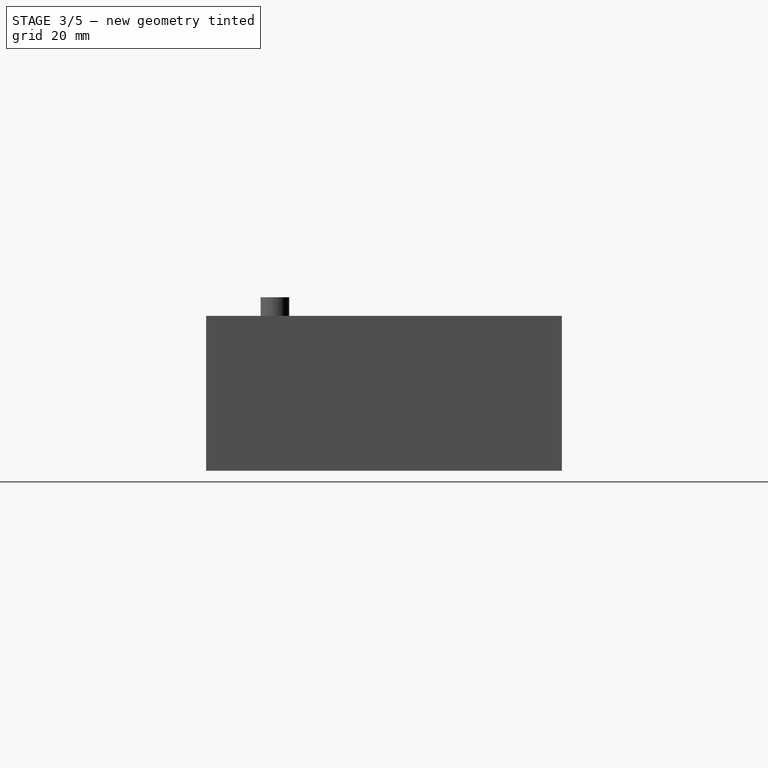
[diagram: stage 3 of 5 — right view after this stage's code; geometry added in this stage tinted green]
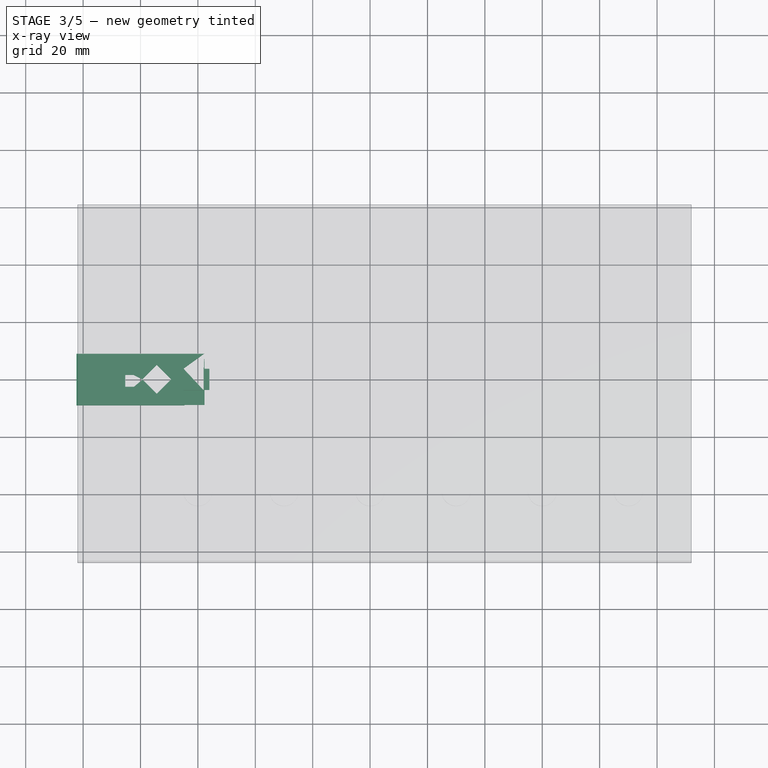
[diagram: stage 3 of 5 — x-ray composite at the top view; earlier geometry ghosted, this stage's added geometry solid]
FEATURE [Part::Feature] Fusion001
  shape: bbox 9 x 7.5 x 3 mm, 12 faces (baked)
FEATURE [Sketcher::SketchObject] Sketch  label="CI"
  MapMode = 5
  sketch-geometry (4):
    g0: LineSegment StartX=-22.3 StartY=9 StartZ=0 EndX=22.3 EndY=9 EndZ=0
    g1: LineSegment StartX=22.3 StartY=9 StartZ=0 EndX=22.3 EndY=-9 EndZ=0
    g2: LineSegment StartX=22.3 StartY=-9 StartZ=0 EndX=-22.3 EndY=-9 EndZ=0
    g3: LineSegment StartX=-22.3 StartY=-9 StartZ=0 EndX=-22.3 EndY=9 EndZ=0
  constraints (12):
    c: Coincident(g0,g1)
    c: Coincident(g1,g2)
    c: Coincident(g2,g3)
    c: Coincident(g3,g0)
    c: Horizontal(g0)
    c: Horizontal(g2)
    c: Vertical(g1)
    c: Vertical(g3)
    c: DistanceY(g3) = 18
    c: DistanceX(g0) = 44.6
    c: DistanceX(g0) = -22.3
    c: DistanceY(g0) = 9
FEATURE [PartDesign::Pad] Pad
  Length = 1.5
  Length2 = 100
  Profile = -> Sketch
  Type = 0
FEATURE [Part::MultiFuse] Fusion008
  Shapes = -> [Pad011,Pad010]
FEATURE [Part::MultiFuse] Fusion009
  Shapes = -> [Fusion008]
FEATURE [Part::MultiFuse] Fusion010
  Shapes = -> [Fusion009]
FEATURE [Part::MultiFuse] Fusion011
  Shapes = -> [Fusion010]
FEATURE [Part::MultiFuse] Fusion012
  Shapes = -> [Fusion011]
FEATURE [Part::MultiFuse] Fusion019  label="nano"
  Shapes = -> [Pad,Fusion012,Fusion001]
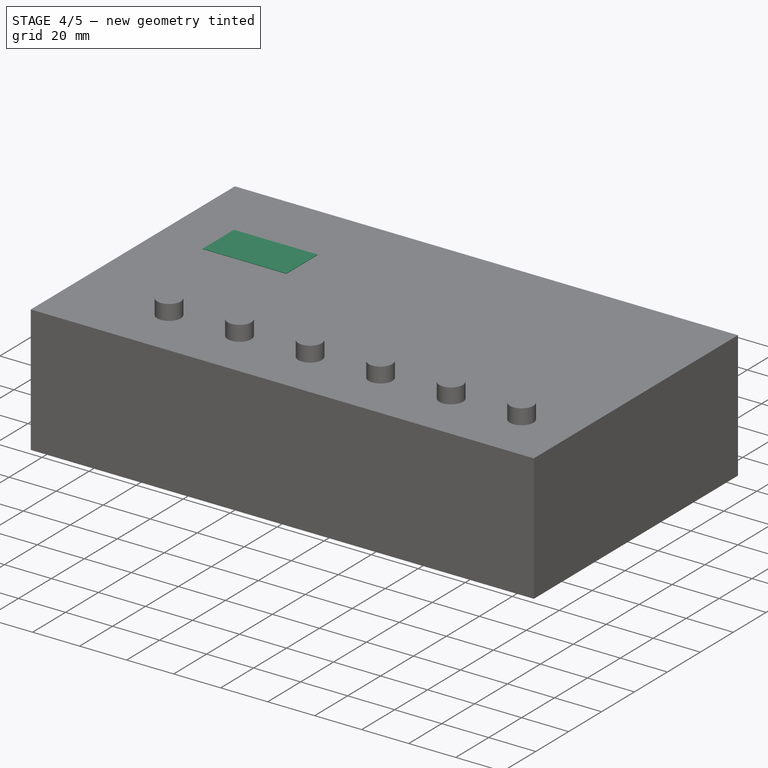
[diagram: stage 4 of 5 — iso view after this stage's code; geometry added in this stage tinted green]
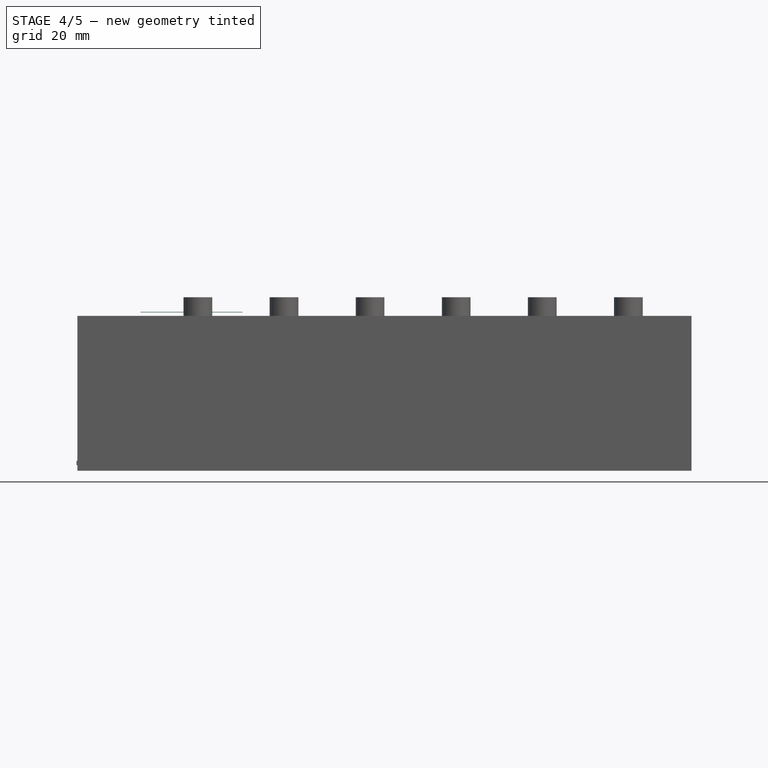
[diagram: stage 4 of 5 — front view after this stage's code; geometry added in this stage tinted green]
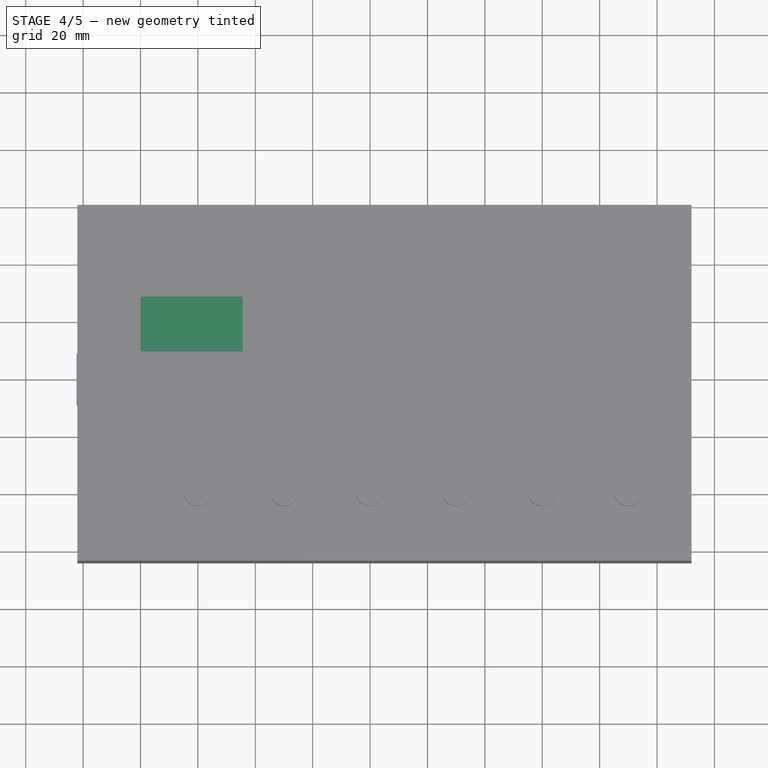
[diagram: stage 4 of 5 — top view after this stage's code; geometry added in this stage tinted green]
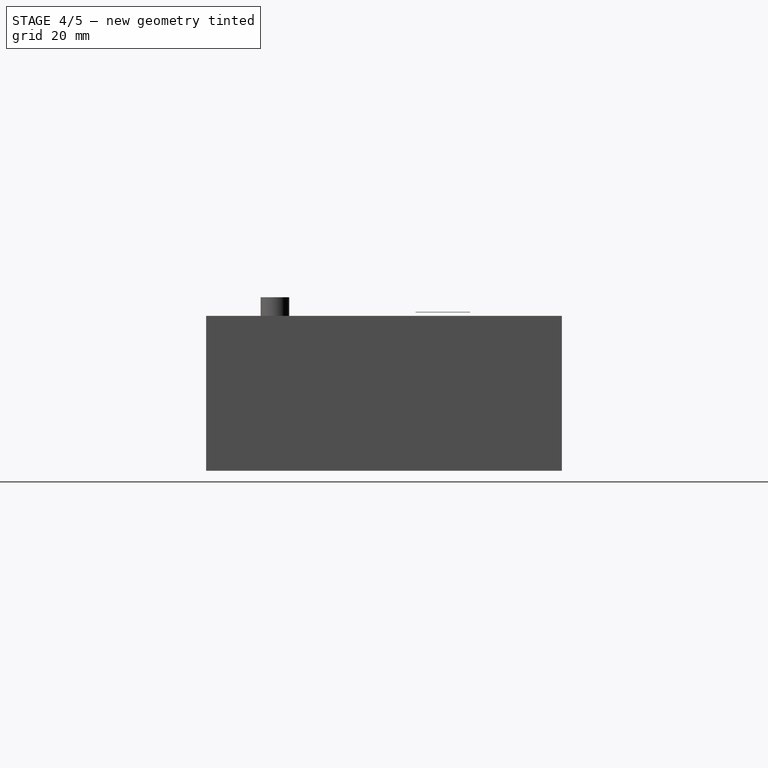
[diagram: stage 4 of 5 — right view after this stage's code; geometry added in this stage tinted green]
FEATURE [Part::Box] Box001  label="oled"
  AttacherType = Attacher::AttachEngine3D
  Height = 1.6
  Length = 35.6
  Placement = pos=(0,0,50) rot=(0,0,1;0rad)
  Width = 33.5
FEATURE [Part::Box] Box003  label="Cube001"
  AttacherType = Attacher::AttachEngine3D
  Height = 0.2
  Length = 35.6
  Placement = pos=(0,9,53.2) rot=(0,0,1;0rad)
  Width = 19
FEATURE [Part::Cylinder] Cylinder003  label="圆柱体"
  Angle = 360
  AttacherType = Attacher::AttachEngine3D
  Height = 10
  Placement = pos=(2.5,2.5,45) rot=(0,0,1;0rad)
  Radius = 1.5
FEATURE [Part::Cylinder] Cylinder004  label="圆柱体001"
  Angle = 360
  AttacherType = Attacher::AttachEngine3D
  Height = 10
  Placement = pos=(33.5,2.5,45) rot=(0,0,1;0rad)
  Radius = 1.5
FEATURE [Part::Cylinder] Cylinder005  label="圆柱体002"
  Angle = 360
  AttacherType = Attacher::AttachEngine3D
  Height = 10
  Placement = pos=(2.5,31,45) rot=(0,0,1;0rad)
  Radius = 1.5
FEATURE [Part::Cylinder] Cylinder006  label="圆柱体003"
  Angle = 360
  AttacherType = Attacher::AttachEngine3D
  Height = 10
  Placement = pos=(33.5,31,45) rot=(0,0,1;0rad)
  Radius = 1.5
FEATURE [Part::MultiFuse] Fusion017
  Shapes = -> [Cylinder006,Cylinder003,Cylinder004,Cylinder005]
FEATURE [Part::Cut] Cut
  Base = -> Box001
  Tool = -> Fusion017
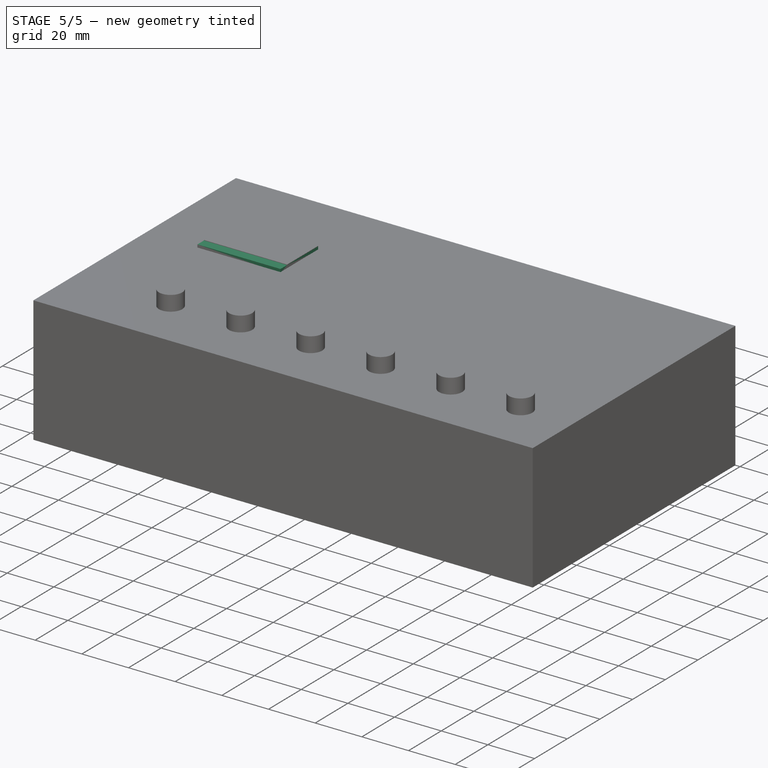
[diagram: stage 5 of 5 — iso view after this stage's code; geometry added in this stage tinted green]
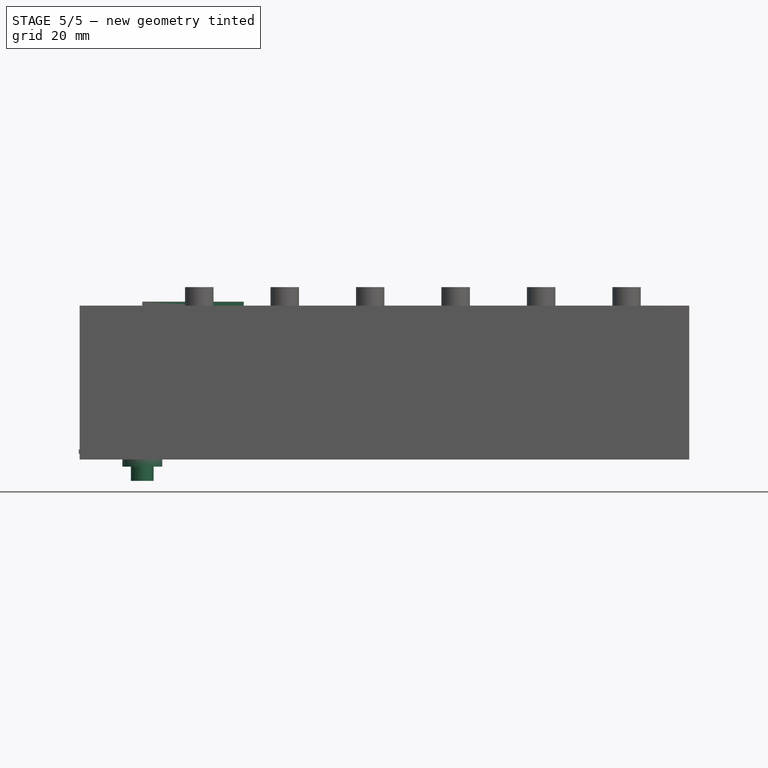
[diagram: stage 5 of 5 — front view after this stage's code; geometry added in this stage tinted green]
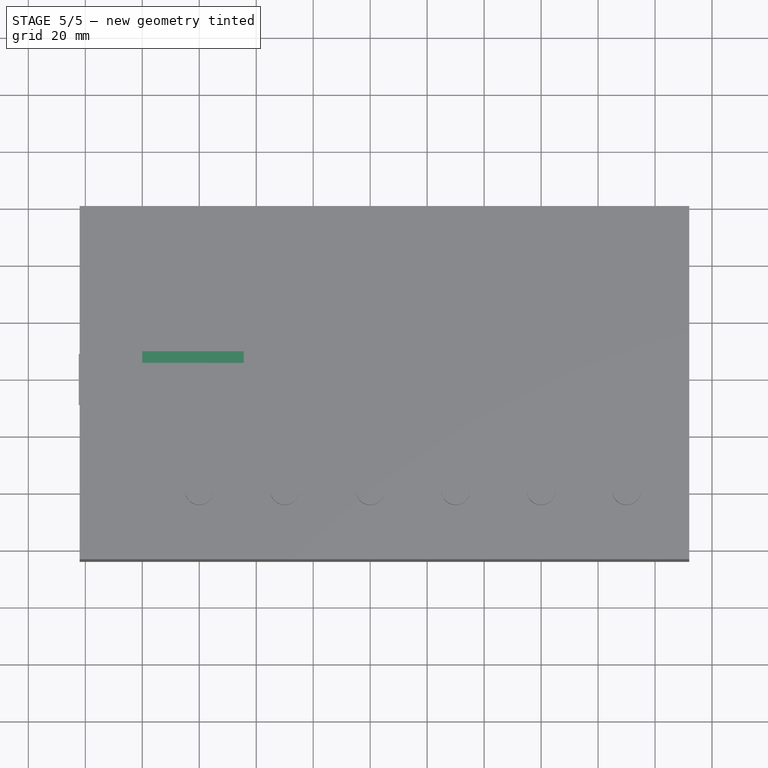
[diagram: stage 5 of 5 — top view after this stage's code; geometry added in this stage tinted green]
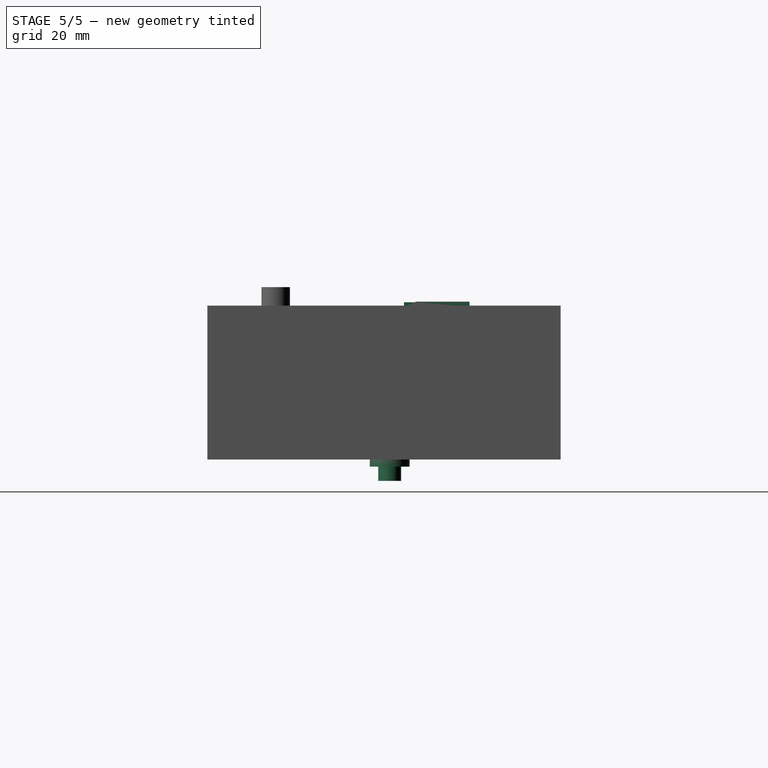
[diagram: stage 5 of 5 — right view after this stage's code; geometry added in this stage tinted green]
FEATURE [Part::Box] Box  label="5v2a"
  AttacherType = Attacher::AttachEngine3D
  Height = 31
  Length = 100
  Placement = pos=(85,0,0) rot=(0,0,1;0rad)
  Width = 58
FEATURE [Part::Cylinder] Cylinder  label="航空头-1"
  Angle = 360
  AttacherType = Attacher::AttachEngine3D
  Height = 6.5
  Radius = 5
FEATURE [Part::Cylinder] Cylinder001  label="Cylinder"
  Angle = 360
  AttacherType = Attacher::AttachEngine3D
  Height = 4.5
  Placement = pos=(0,0,-4.5) rot=(0,0,1;0rad)
  Radius = 7
FEATURE [Part::Cylinder] Cylinder002  label="Cylinder001"
  Angle = 360
  AttacherType = Attacher::AttachEngine3D
  Height = 5
  Placement = pos=(0,0,-9.5) rot=(0,0,1;0rad)
  Radius = 4
FEATURE [Part::MultiFuse] Fusion  label="航空头座"
  Shapes = -> [Cylinder,Cylinder001,Cylinder002]
FEATURE [Part::Box] Box002  label="Cube"
  AttacherType = Attacher::AttachEngine3D
  Height = 1.6
  Length = 35.6
  Placement = pos=(0,5,51.6) rot=(0,0,1;0rad)
  Width = 23
FEATURE [Part::MultiFuse] Fusion018  label="oled001"
  Shapes = -> [Box002,Box003,Cut]
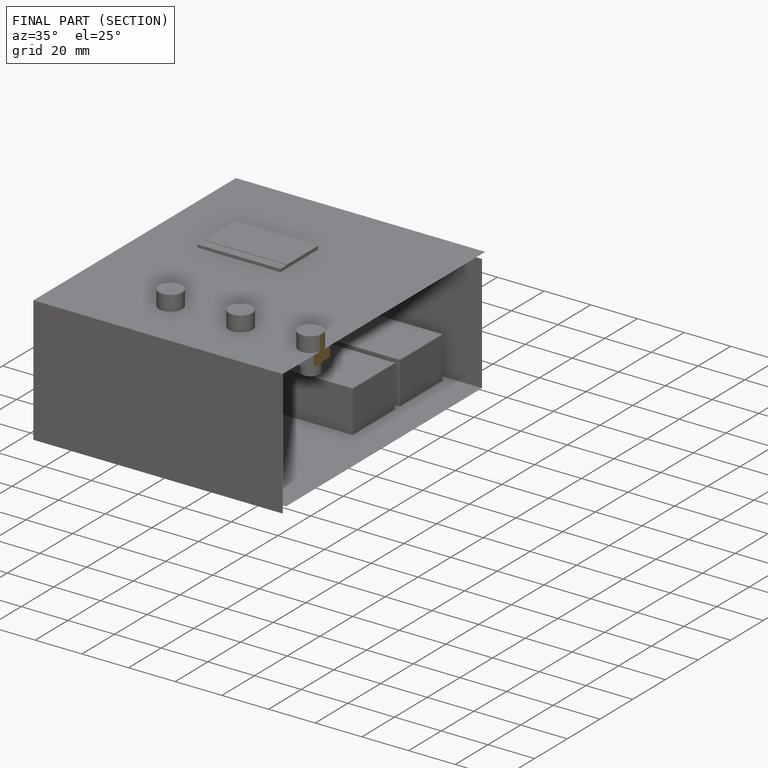
[diagram: finished part — half-section view (interior)]
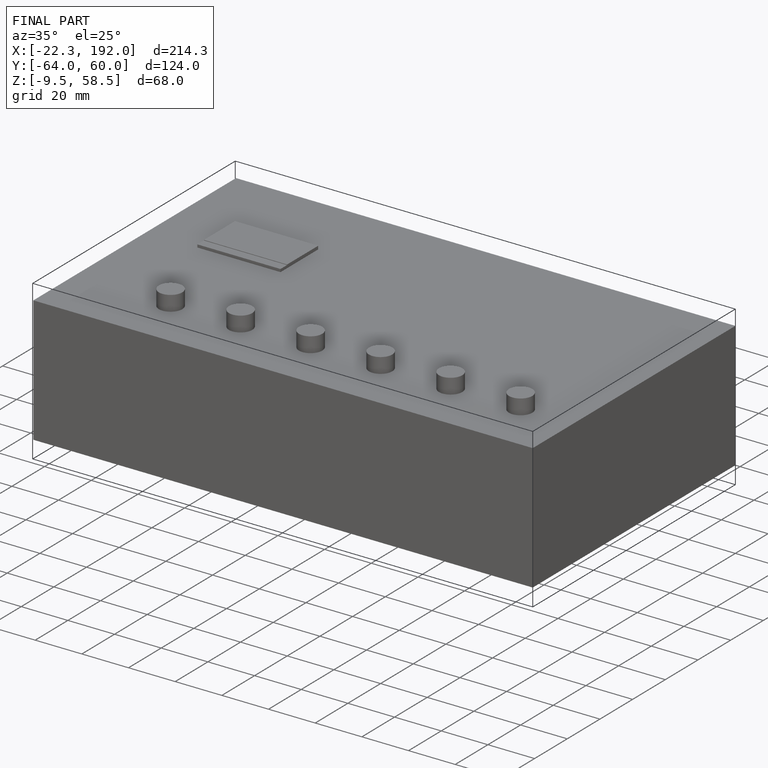
[diagram: finished part — iso view with bounding-box wireframe]
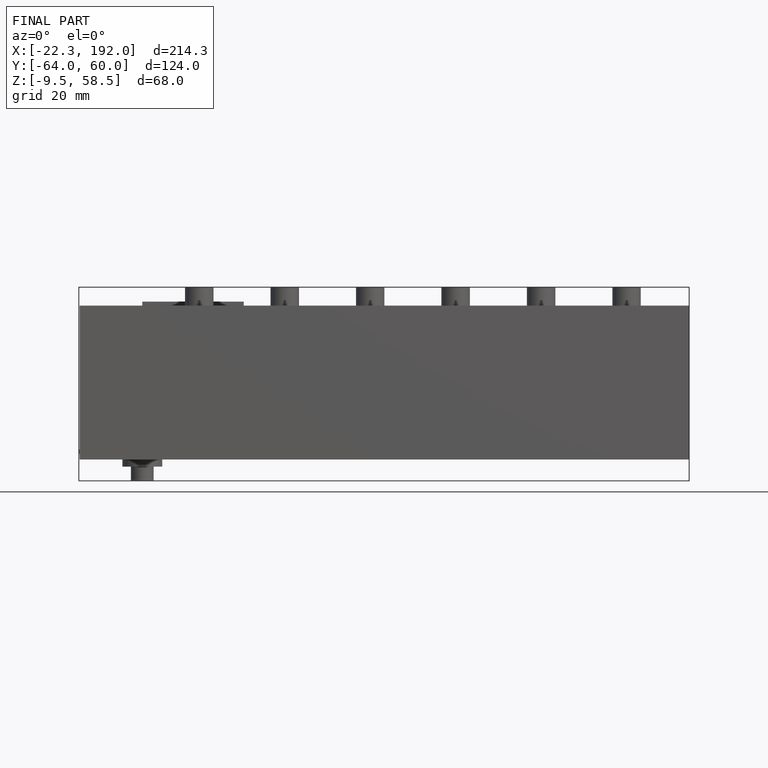
[diagram: finished part — front view with bounding-box wireframe]
